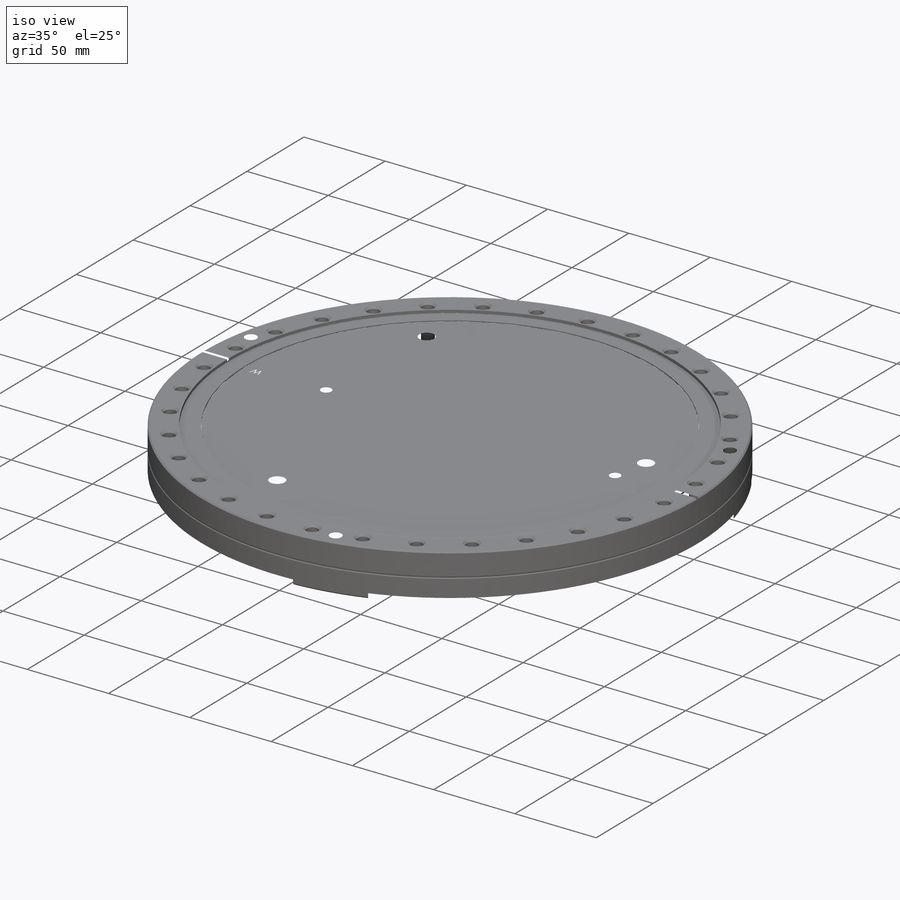
[diagram: iso view]
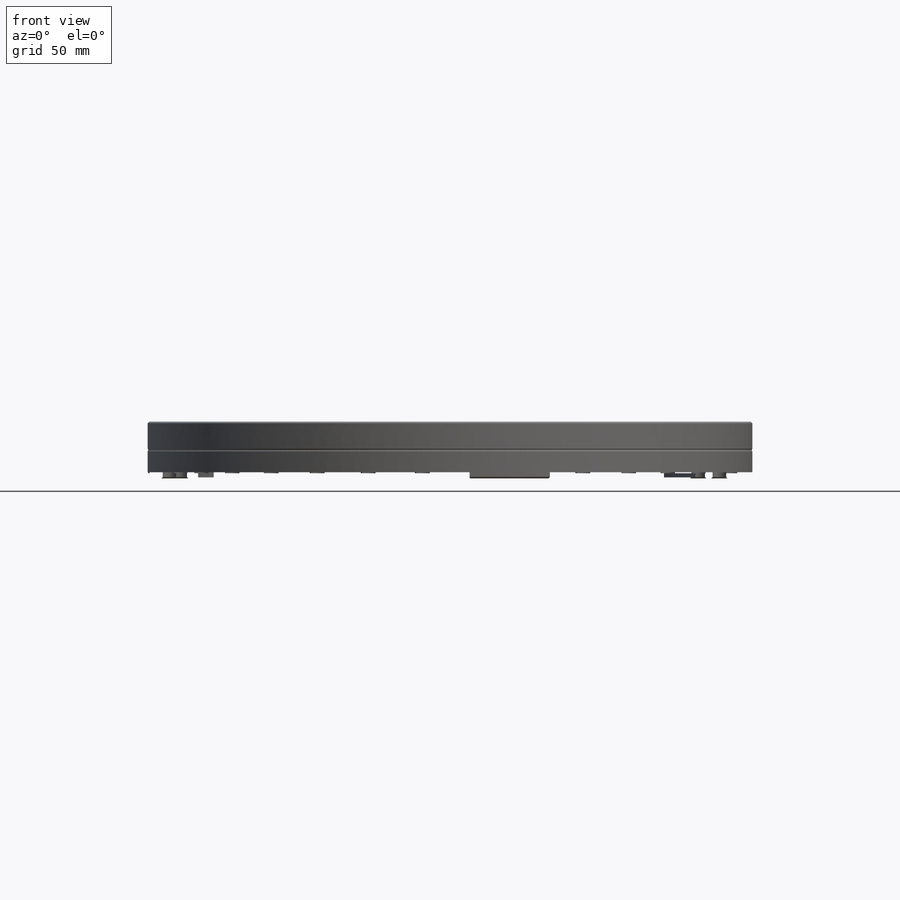
[diagram: front view]
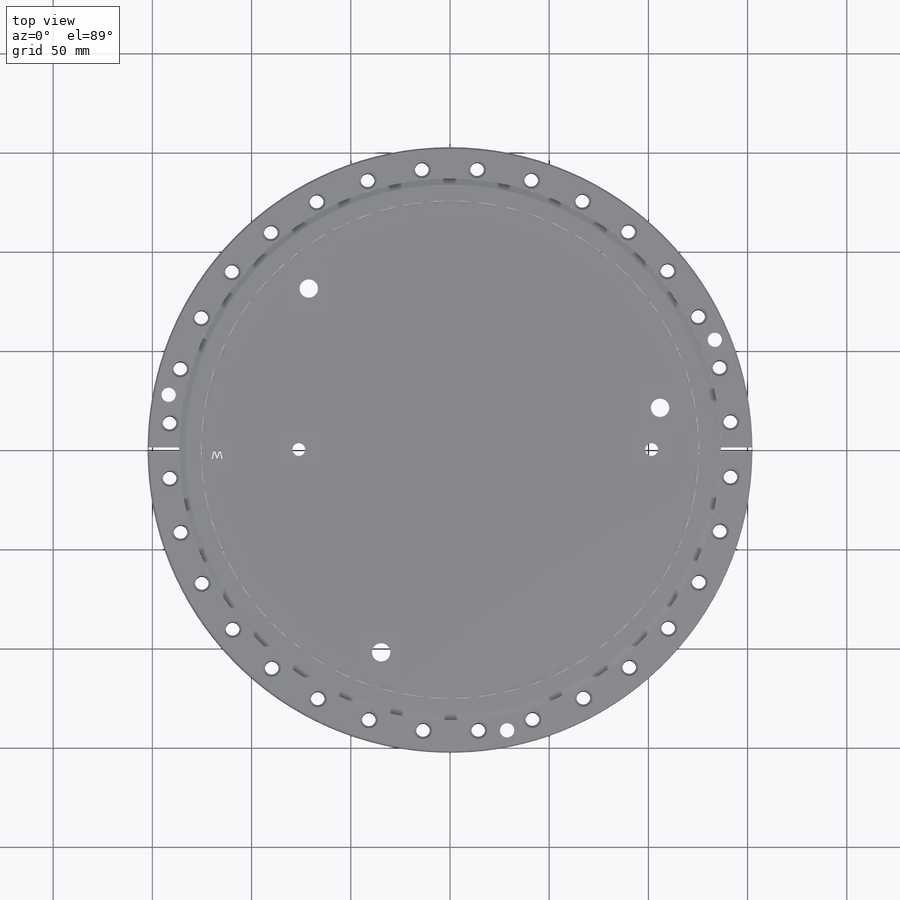
[diagram: top view]
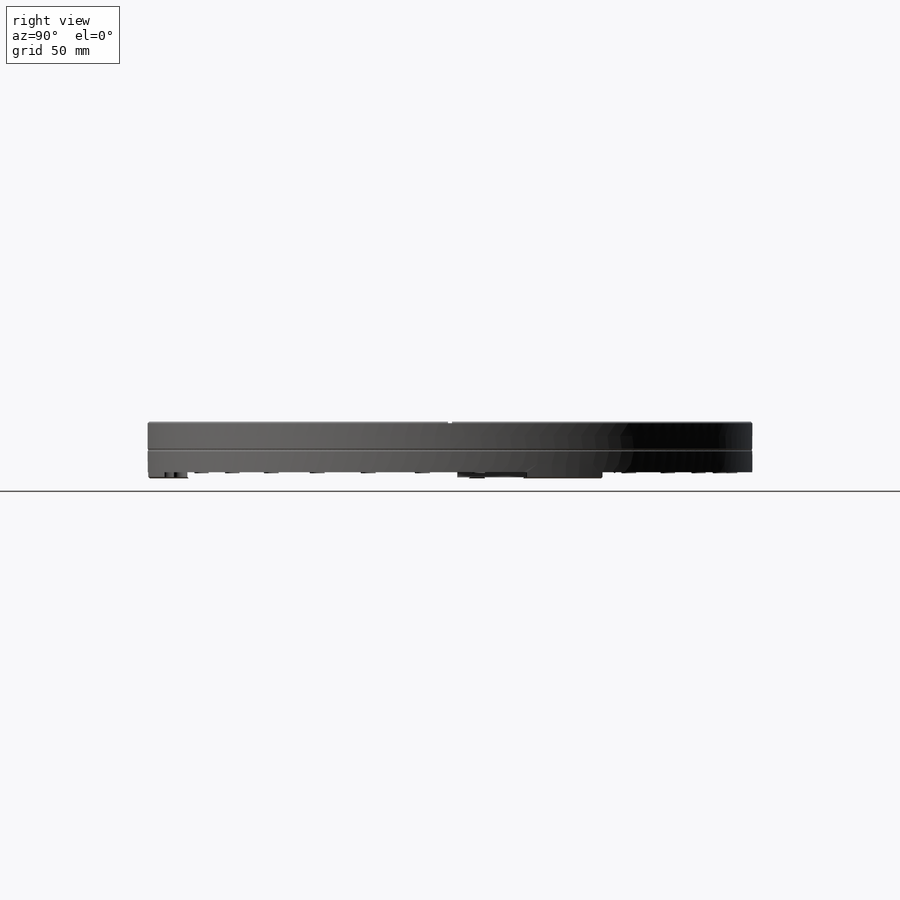
[diagram: right view]
SOLIDWORKS PART (.sldprt)
format: sldprt  version: not decoded by parser v0  size: 1,235,456 bytes
history: native  units: mm
features: sketch x16, cut_extrude x6, plane x4, hole x4, material x1, revolve x1, thread x1, pattern_circular x1, extrude x1, fillet x1, chamfer x1 + 1 further entry (+13 scaffold rows collapsed)
feature tree (51):
  scaffold x13  (default folders/planes/origin — collapsed)
  material  "304 SSTL"
  "Origin"  ID=-1
  plane  "Plane1"
  sketch  "Sketch1"  dims[c1.D8=0.7874mm c1.D9=0.7874mm c1.D1=15.875mm c1.D2=26.9875mm c1.D3=28.575mm c1.D4=27.9146mm c1.D5=~1.788271mm c2.D5=290.0deg c2.D6=~27.308307mm c2.D7=152.4mm c2.D9=14.2875mm c2.D10=18.8976mm c2.D4=0.6604mm]
  revolve  "Flange Revolve"  Angle=360deg
  plane  "Plane2"
  hole  "5/16-24 Tapped Holes"  Diameter=6.9088mm Depth=28.575mm
  sketch  "Sketch47"  dims[c1.D1=141.9987mm c1.D2=~161.074278mm c2.D2=5.5deg]
  sketch  "Sketch46"  dims[hole-wizard template sketch: 46 standard entries collapsed; hole parameters kept: c15.Thru Tap Drill Dia.=6.9088mm c15.Thru Tap Drill Depth=28.575mm c15.Near C'Sink Dia.=9.2075mm c15.D4=~3.666174mm c15.Near C'Sink Angle=90.0deg c15.Far C'Sink Dia.=8.1788mm c15.D6=~9.919017mm c15.Far C'Sink Angle=90.0deg]
  thread  "Hole Thread4"  Diameter=7.9375mm  [1 undecoded]
  pattern_circular  "5/16-24 Tapped Holes CirPattern1"  Count=32 Angle=11.25deg
  plane  "Plane32"
  plane  "Plane33"
  sketch  "Sketch36"  dims[D1=254.0mm]
  cut_extrude  "bottom material removal Cut-Extrude2"  Depth=15.875mm
  sketch  "Sketch40"  dims[c1.D1=19.05mm c1.D8=50.8mm c1.D2=~114.714419mm c2.D2=41.2deg c2.D3=107.95mm c3.D3=120.0deg c3.D4=107.95mm c4.D4=120.0deg c4.D5=107.95mm c4.D6=107.95mm c4.D7=107.95mm]
  extrude  "Interposer mounting hole boss Extrude4"  Depth=13.335mm
  hole  "3x 5/16-24 Interposer Tapped Holes"  Diameter=6.9088mm Depth=19.68754mm
  sketch  "Sketch38"  dims[c1.D1=88.9mm c1.D2=19.05mm c2.D1=~90.918164mm c3.D1=120.0deg c3.D2=~74.059735mm c4.D2=120.0deg c4.D3=107.95mm c4.D1=107.95mm c5.D2=~122.123327mm c6.D2=23.91deg c7.D2=~71.105527mm c8.D2=41.25deg c8.D3=107.95mm c9.D3=120.0deg c9.D4=~71.105527mm c10.D4=120.0deg]
  sketch  "Sketch37"  dims[hole-wizard template sketch: 26 standard entries collapsed; hole parameters kept: c8.Tap Drill Dia.=6.9088mm c8.Tap Drill Depth=~19.68754mm c8.Thread Major Dia.=7.9375mm c8.Thread Depth=13.97mm c8.Near C'Sink Dia.=9.2075mm c8.D6=~4.399409mm c8.Near C'Sink Angle=90.0deg c8.D7=~14.816244mm c8.Drill Angle=118.0deg]
  sketch  "Sketch39"  dims[D1=114.3mm]
  cut_extrude  "W _ Extrude3"  Depth=0.508mm
  sketch  "Sketch42"  dims[c1.D1=~6.353565mm c1.D2=7.9375mm c1.D6=~7.431281mm c2.D2=~9.54278mm c2.D1=123.825mm c2.D3=88.9mm c2.D4=~27.60127mm c3.D4=10.0deg c4.D4=1.27mm c4.D5=~27.60127mm c5.D5=15.0deg c5.D4=~111.997861mm c6.D4=34.0deg c6.D6=77.978mm c6.D7=136.525mm c6.D1=147.32mm c6.D3=25.4mm c6.D5=4.7752mm c7.D5=60.0deg c7.D6=2.54mm]
  cut_extrude  "POD Clocking feature Cut-Extrude3"  Depth=17.145mm
  fillet  "POD Clocking feature Fillet1"  Radius=25.4mm
  hole  "1/4 Clearance Hole1"  Diameter=7.14248mm Depth=58.338527mm
  sketch  "Sketch52"  dims[c1.D1=~142.987892mm c1.D2=144.4625mm c2.D2=112.5deg c2.D3=~172.303108mm c3.D3=168.5deg c3.D4=~132.949136mm c4.D4=101.0deg]
  sketch  "Sketch53"  dims[Thru Hole Dia.=~7.14248mm Thru Hole Depth=~58.338527mm Far C'Sink Dia.=~8.41248mm Far C'Sink Angle=90.0deg]
  sketch  "Sketch34"  dims[c1.D1=254.0mm c1.D2=~57.342327mm c1.D3=~32.892504mm c2.D2=41.275mm c2.D3=19.05mm c2.D4=~141.787452mm c3.D4=112.5deg c4.D4=~131.305865mm c5.D4=22.5deg c5.D3=41.275mm c5.D5=41.275mm c5.D6=19.05mm]
  cut_extrude  "3 pod feet Cut-Extrude1"  Depth=2.54mm
  sketch  "Sketch48"  dims[c1.D1=~0.964669mm c2.D1=90.0deg c2.D2=~1.832571mm c3.D2=135.0deg c3.D3=151.384mm]
  cut_extrude  "Edge Alignment  Mark, Cut-Extrude1"  [1 undecoded]
  sketch  "Sketch49"  dims[D1=~313.795145mm]
  cut_extrude  "Top Alignment Mark, Cut Extrude1"  Depth=1.016mm
  chamfer  "Bottom Chamfer1"  Distance=0.508mm Angle=45deg
  hole  "CBORE for 1/4 dowel pin"  Diameter=6.35mm Depth=9.525mm
  sketch  "Sketch55"  dims[D1=76.2mm D2=101.6mm]
  sketch  "Sketch54"  dims[hole-wizard template sketch: 29 standard entries collapsed; hole parameters kept: c8.Hole Depth=9.525mm c8.C'Bore Dia.=6.3754mm c8.C'Bore Depth=2.54mm c8.D5=~14.816244mm c8.Drill Angle=118.0deg]
decode coverage: 31 of 32 modeling features carry decoded parameters; 1 rows unclassified (native names shown)
note: ~ marks probable driven/reference dimensions
note: 2 parameter values undecoded
summary: Diameter pulled from absorbed wizard sketch
note: suppression state not decoded; provenance and decode notes live in map.json
